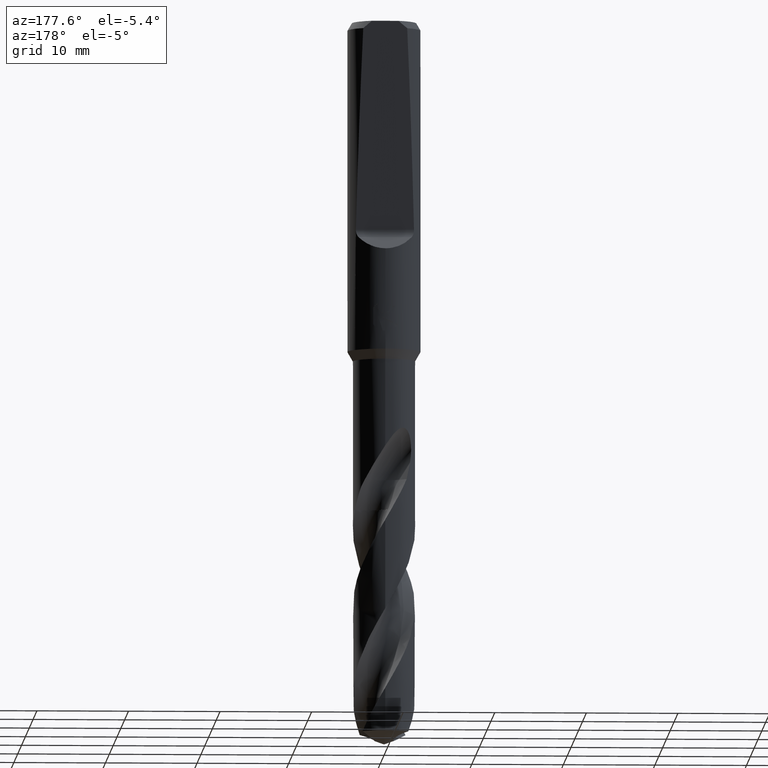
[diagram: clean part render]
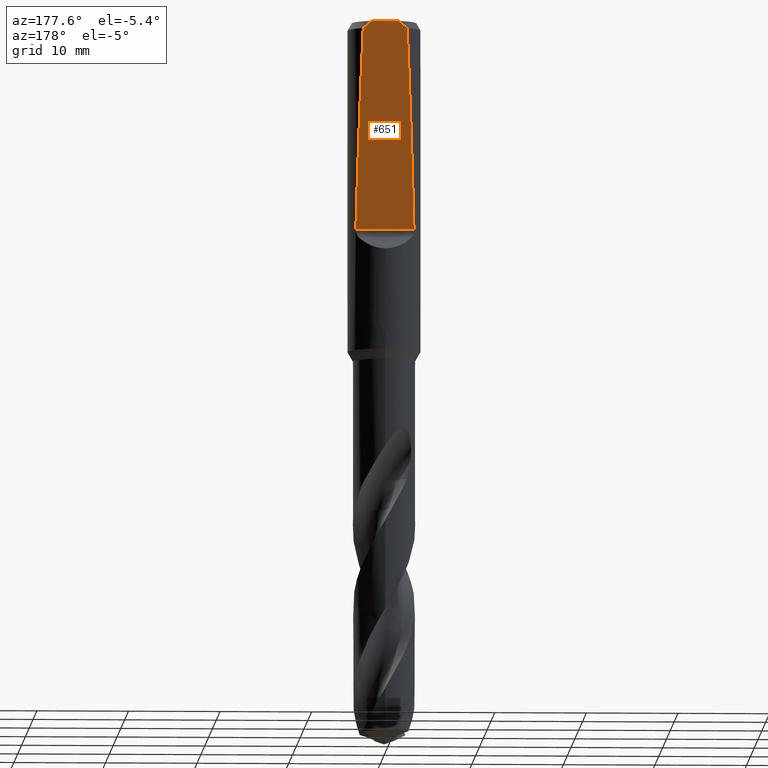
[diagram: same view with one face highlighted and labeled with its STEP entity id]
A machine part, auxiliary view. The second image highlights one B-rep face of the part: STEP entity #651.
In plain terms, the highlighted planar face has unit normal (0, -0.9994, 0.0349).
Its self-contained STEP definition (entity closure, byte-faithful):
#307=EDGE_CURVE('',#715,#835,#870,.T.);
#415=EDGE_CURVE('',#793,#755,#989,.T.);
#533=EDGE_CURVE('',#797,#823,#1118,.T.);
#651=ADVANCED_FACE('',(#1249),#1250,.F.);
#695=EDGE_CURVE('',#823,#793,#1298,.T.);
#715=VERTEX_POINT('',#1320);
#755=VERTEX_POINT('',#1364);
#759=EDGE_CURVE('',#755,#715,#1368,.T.);
#761=EDGE_CURVE('',#835,#797,#1370,.T.);
#793=VERTEX_POINT('',#1403);
#797=VERTEX_POINT('',#1407);
#823=VERTEX_POINT('',#1435);
#835=VERTEX_POINT('',#1448);
#870=ELLIPSE('',#1483,114.614833391376,4.0);
#989=ELLIPSE('',#2428,114.614833391376,4.0);
#1118=LINE('',#5121,#5122);
#1249=FACE_OUTER_BOUND('',#6697,.T.);
#1250=PLANE('',#6698);
#1298=(B_SPLINE_CURVE(2,(#7021,#7022,#7023),.UNSPECIFIED.,.F.,.F.)B_SPLINE_CURVE_WITH_KNOTS((3,3),(0.0,1.24509248814237),.UNSPECIFIED.)RATIONAL_B_SPLINE_CURVE((1.0,1.00726161475639,1.0))BOUNDED_CURVE()REPRESENTATION_ITEM('')GEOMETRIC_REPRESENTATION_ITEM()CURVE());
#1320=CARTESIAN_POINT('',(3.17557583065469,2.43222493691719,-22.8044492009967));
#1364=CARTESIAN_POINT('',(-3.17557583065469,2.43222493691719,-22.8044492009967));
#1368=LINE('',#7482,#7483);
#1370=(B_SPLINE_CURVE(2,(#7487,#7488,#7489),.UNSPECIFIED.,.F.,.F.)B_SPLINE_CURVE_WITH_KNOTS((3,3),(0.0,1.24509248814237),.UNSPECIFIED.)RATIONAL_B_SPLINE_CURVE((1.0,1.00726161475639,1.0))BOUNDED_CURVE()REPRESENTATION_ITEM('')GEOMETRIC_REPRESENTATION_ITEM()CURVE());
#1403=CARTESIAN_POINT('',(-2.39915011791252,3.20063723525806,-0.799999999999997));
#1407=CARTESIAN_POINT('',(1.44727416204323,3.22857385085146,0.0));
#1435=CARTESIAN_POINT('',(-1.44727416204323,3.22857385085146,0.0));
#1448=CARTESIAN_POINT('',(2.39915011791252,3.20063723525806,-0.799999999999997));
#1483=AXIS2_PLACEMENT_3D('',#7835,#7836,#7837);
#2428=AXIS2_PLACEMENT_3D('',#7977,#7978,#7979);
#5121=CARTESIAN_POINT('',(-2.0,3.22857385085146,1.77635683940025E-015));
#5122=VECTOR('',#8094,1.0);
#6697=EDGE_LOOP('',(#8256,#8257,#8258,#8259,#8260,#8261));
#6698=AXIS2_PLACEMENT_3D('',#8262,#8263,#8264);
#7021=CARTESIAN_POINT('',(-1.44727416204323,3.22857385085146,1.11022302462516E-016));
#7022=CARTESIAN_POINT('',(-1.89558220846588,3.21806228504891,-0.301011860721693));
#7023=CARTESIAN_POINT('',(-2.39915011791252,3.20063723525806,-0.799999999999997));
#7482=CARTESIAN_POINT('',(-4.0,2.43222493691719,-22.8044492009967));
#7483=VECTOR('',#8382,1.0);
#7487=CARTESIAN_POINT('',(2.39915011791252,3.20063723525806,-0.799999999999997));
#7488=CARTESIAN_POINT('',(1.89558220846588,3.21806228504891,-0.301011860721693));
#7489=CARTESIAN_POINT('',(1.44727416204323,3.22857385085146,1.11022302462516E-016));
#7835=CARTESIAN_POINT('',(0.0,0.0,-92.4542585355811));
#7836=DIRECTION('',(0.0,-0.999390827019096,0.0348994967025007));
#7837=DIRECTION('',(0.0,0.0348994967025007,0.999390827019096));
#7977=CARTESIAN_POINT('',(0.0,0.0,-92.4542585355811));
#7978=DIRECTION('',(0.0,-0.999390827019096,0.0348994967025007));
#7979=DIRECTION('',(0.0,0.0348994967025007,0.999390827019096));
#8094=DIRECTION('',(-1.0,0.0,0.0));
#8256=ORIENTED_EDGE('',*,*,#415,.F.);
#8257=ORIENTED_EDGE('',*,*,#695,.F.);
#8258=ORIENTED_EDGE('',*,*,#533,.F.);
#8259=ORIENTED_EDGE('',*,*,#761,.F.);
#8260=ORIENTED_EDGE('',*,*,#307,.F.);
#8261=ORIENTED_EDGE('',*,*,#759,.F.);
#8262=CARTESIAN_POINT('',(-4.0,2.43222493691719,-22.8044492009967));
#8263=DIRECTION('',(0.0,-0.999390827019096,0.0348994967025007));
#8264=DIRECTION('',(0.0,-0.0348994967025007,-0.999390827019096));
#8382=DIRECTION('',(1.0,0.0,0.0));